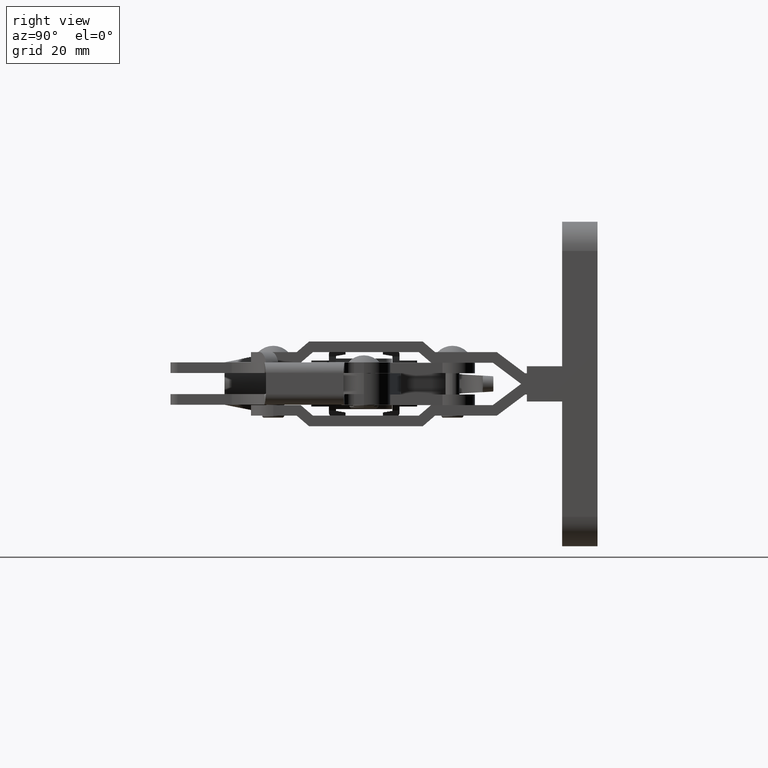
[diagram: clean part render]
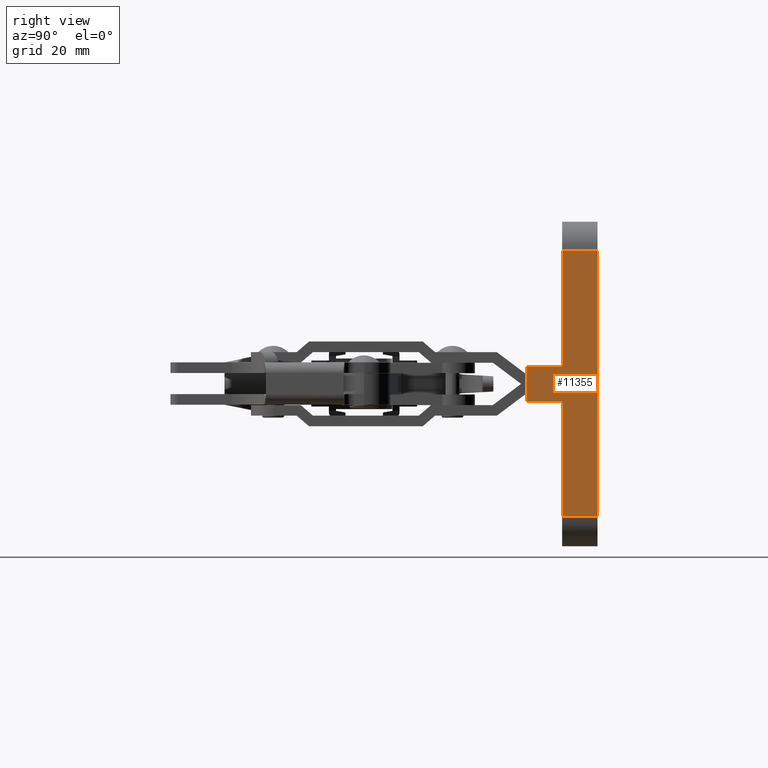
[diagram: same view with one face highlighted and labeled with its STEP entity id]
A machine part, right view. The second image highlights one B-rep face of the part: STEP entity #11355.
In plain terms, the highlighted planar face has unit normal (1, 0, -0).
Its self-contained STEP definition (entity closure, byte-faithful):
#10 = VERTEX_POINT ( 'NONE', #198 ) ;
#168 = EDGE_CURVE ( 'NONE', #3936, #8547, #9973, .T. ) ;
#198 = CARTESIAN_POINT ( 'NONE',  ( -28.45000000000017700, 95.99999999999980100, -5.000000000000014200 ) ) ;
#390 = DIRECTION ( 'NONE',  ( -3.836121266936960200E-033, 1.000000000000000000, -2.312983789176260900E-015 ) ) ;
#728 = EDGE_CURVE ( 'NONE', #10, #3936, #8229, .T. ) ;
#912 = LINE ( 'NONE', #2868, #3010 ) ;
#1147 = ORIENTED_EDGE ( 'NONE', *, *, #10245, .T. ) ;
#1371 = EDGE_CURVE ( 'NONE', #11143, #4675, #9844, .T. ) ;
#1647 = VECTOR ( 'NONE', #5258, 1000.000000000000000 ) ;
#1750 = CARTESIAN_POINT ( 'NONE',  ( -28.45000000000017700, 85.98999999999993800, 4.999999999999991100 ) ) ;
#1999 = CARTESIAN_POINT ( 'NONE',  ( -28.45000000000017700, 85.98999999999996600, 37.65000000000002000 ) ) ;
#2628 = ORIENTED_EDGE ( 'NONE', *, *, #168, .T. ) ;
#2721 = VECTOR ( 'NONE', #390, 1000.000000000000000 ) ;
#2868 = CARTESIAN_POINT ( 'NONE',  ( -28.45000000000017700, 85.98999999999996600, 37.65000000000002000 ) ) ;
#2901 = DIRECTION ( 'NONE',  ( -1.658530013599391000E-018, -1.915454074022922200E-020, -1.000000000000000000 ) ) ;
#3010 = VECTOR ( 'NONE', #9217, 1000.000000000000000 ) ;
#3150 = VERTEX_POINT ( 'NONE', #4745 ) ;
#3174 = DIRECTION ( 'NONE',  ( -3.836121266936960200E-033, 1.000000000000000000, -2.312983789176260900E-015 ) ) ;
#3247 = VECTOR ( 'NONE', #5914, 1000.000000000000000 ) ;
#3294 = CARTESIAN_POINT ( 'NONE',  ( -28.45000000000017700, 105.9999999999999700, 37.64999999999997000 ) ) ;
#3529 = LINE ( 'NONE', #4992, #3247 ) ;
#3893 = ORIENTED_EDGE ( 'NONE', *, *, #728, .T. ) ;
#3936 = VERTEX_POINT ( 'NONE', #8156 ) ;
#4327 = CARTESIAN_POINT ( 'NONE',  ( -28.45000000000017700, 105.9999999999998000, -37.65000000000002700 ) ) ;
#4329 = ORIENTED_EDGE ( 'NONE', *, *, #9561, .F. ) ;
#4675 = VERTEX_POINT ( 'NONE', #3294 ) ;
#4745 = CARTESIAN_POINT ( 'NONE',  ( -28.45000000000017700, 95.99999999999980100, 4.999999999999991100 ) ) ;
#4992 = CARTESIAN_POINT ( 'NONE',  ( -28.45000000000017700, 105.9999999999999700, 37.64999999999997000 ) ) ;
#5258 = DIRECTION ( 'NONE',  ( 0.0000000000000000000, -1.000000000000000000, 1.915454074022858400E-020 ) ) ;
#5404 = CARTESIAN_POINT ( 'NONE',  ( -28.45000000000017700, 95.99999999999980100, -49.89271138294370900 ) ) ;
#5782 = CARTESIAN_POINT ( 'NONE',  ( -28.45000000000017700, 85.98999999999986700, -5.000000000000001800 ) ) ;
#5914 = DIRECTION ( 'NONE',  ( -1.658530013599391200E-018, -2.211618805188462900E-015, -1.000000000000000000 ) ) ;
#6163 = CARTESIAN_POINT ( 'NONE',  ( -28.45000000000017700, 84.05810331881789900, 4.999999999999991100 ) ) ;
#6360 = LINE ( 'NONE', #11117, #11212 ) ;
#6423 = EDGE_CURVE ( 'NONE', #11143, #3150, #11385, .T. ) ;
#6799 = CARTESIAN_POINT ( 'NONE',  ( -28.45000000000017700, 85.98999999999996600, 37.65000000000002000 ) ) ;
#7088 = CARTESIAN_POINT ( 'NONE',  ( -28.45000000000017700, 95.99999999999980100, 37.65000000000002000 ) ) ;
#7101 = VECTOR ( 'NONE', #11105, 1000.000000000000000 ) ;
#7747 = CARTESIAN_POINT ( 'NONE',  ( -28.45000000000017700, 85.98999999999979600, -37.64999999999997700 ) ) ;
#8156 = CARTESIAN_POINT ( 'NONE',  ( -28.45000000000017700, 95.99999999999980100, -37.65000000000002000 ) ) ;
#8229 = LINE ( 'NONE', #5404, #10640 ) ;
#8287 = AXIS2_PLACEMENT_3D ( 'NONE', #1999, #8329, #2901 ) ;
#8329 = DIRECTION ( 'NONE',  ( 1.000000000000000000, 0.0000000000000000000, -1.658530013599391000E-018 ) ) ;
#8547 = VERTEX_POINT ( 'NONE', #4327 ) ;
#8692 = VECTOR ( 'NONE', #3174, 1000.000000000000000 ) ;
#8887 = LINE ( 'NONE', #6163, #1647 ) ;
#9071 = ORIENTED_EDGE ( 'NONE', *, *, #10415, .T. ) ;
#9207 = PLANE ( 'NONE',  #8287 ) ;
#9217 = DIRECTION ( 'NONE',  ( -1.658530013599391200E-018, -2.211618805188462900E-015, -1.000000000000000000 ) ) ;
#9258 = ORIENTED_EDGE ( 'NONE', *, *, #6423, .T. ) ;
#9263 = VERTEX_POINT ( 'NONE', #1750 ) ;
#9287 = DIRECTION ( 'NONE',  ( 0.0000000000000000000, 1.000000000000000000, -1.915454074022858400E-020 ) ) ;
#9313 = CARTESIAN_POINT ( 'NONE',  ( -28.45000000000017700, 95.99999999999980100, 4.999999999999991100 ) ) ;
#9561 = EDGE_CURVE ( 'NONE', #4675, #8547, #3529, .T. ) ;
#9844 = LINE ( 'NONE', #6799, #8692 ) ;
#9973 = LINE ( 'NONE', #7747, #2721 ) ;
#10131 = VERTEX_POINT ( 'NONE', #5782 ) ;
#10223 = FACE_OUTER_BOUND ( 'NONE', #11000, .T. ) ;
#10245 = EDGE_CURVE ( 'NONE', #3150, #9263, #8887, .T. ) ;
#10415 = EDGE_CURVE ( 'NONE', #9263, #10131, #912, .T. ) ;
#10640 = VECTOR ( 'NONE', #10859, 1000.000000000000000 ) ;
#10849 = ORIENTED_EDGE ( 'NONE', *, *, #1371, .F. ) ;
#10859 = DIRECTION ( 'NONE',  ( -1.658530013599391000E-018, -1.915454074022922200E-020, -1.000000000000000000 ) ) ;
#11000 = EDGE_LOOP ( 'NONE', ( #1147, #9071, #11562, #3893, #2628, #4329, #10849, #9258 ) ) ;
#11105 = DIRECTION ( 'NONE',  ( -1.658530013599391000E-018, -1.915454074022922200E-020, -1.000000000000000000 ) ) ;
#11117 = CARTESIAN_POINT ( 'NONE',  ( -28.45000000000017700, 95.99999999999980100, -5.000000000000014200 ) ) ;
#11143 = VERTEX_POINT ( 'NONE', #7088 ) ;
#11212 = VECTOR ( 'NONE', #9287, 1000.000000000000000 ) ;
#11355 = ADVANCED_FACE ( 'NONE', ( #10223 ), #9207, .T. ) ;
#11385 = LINE ( 'NONE', #9313, #7101 ) ;
#11392 = EDGE_CURVE ( 'NONE', #10131, #10, #6360, .T. ) ;
#11562 = ORIENTED_EDGE ( 'NONE', *, *, #11392, .T. ) ;